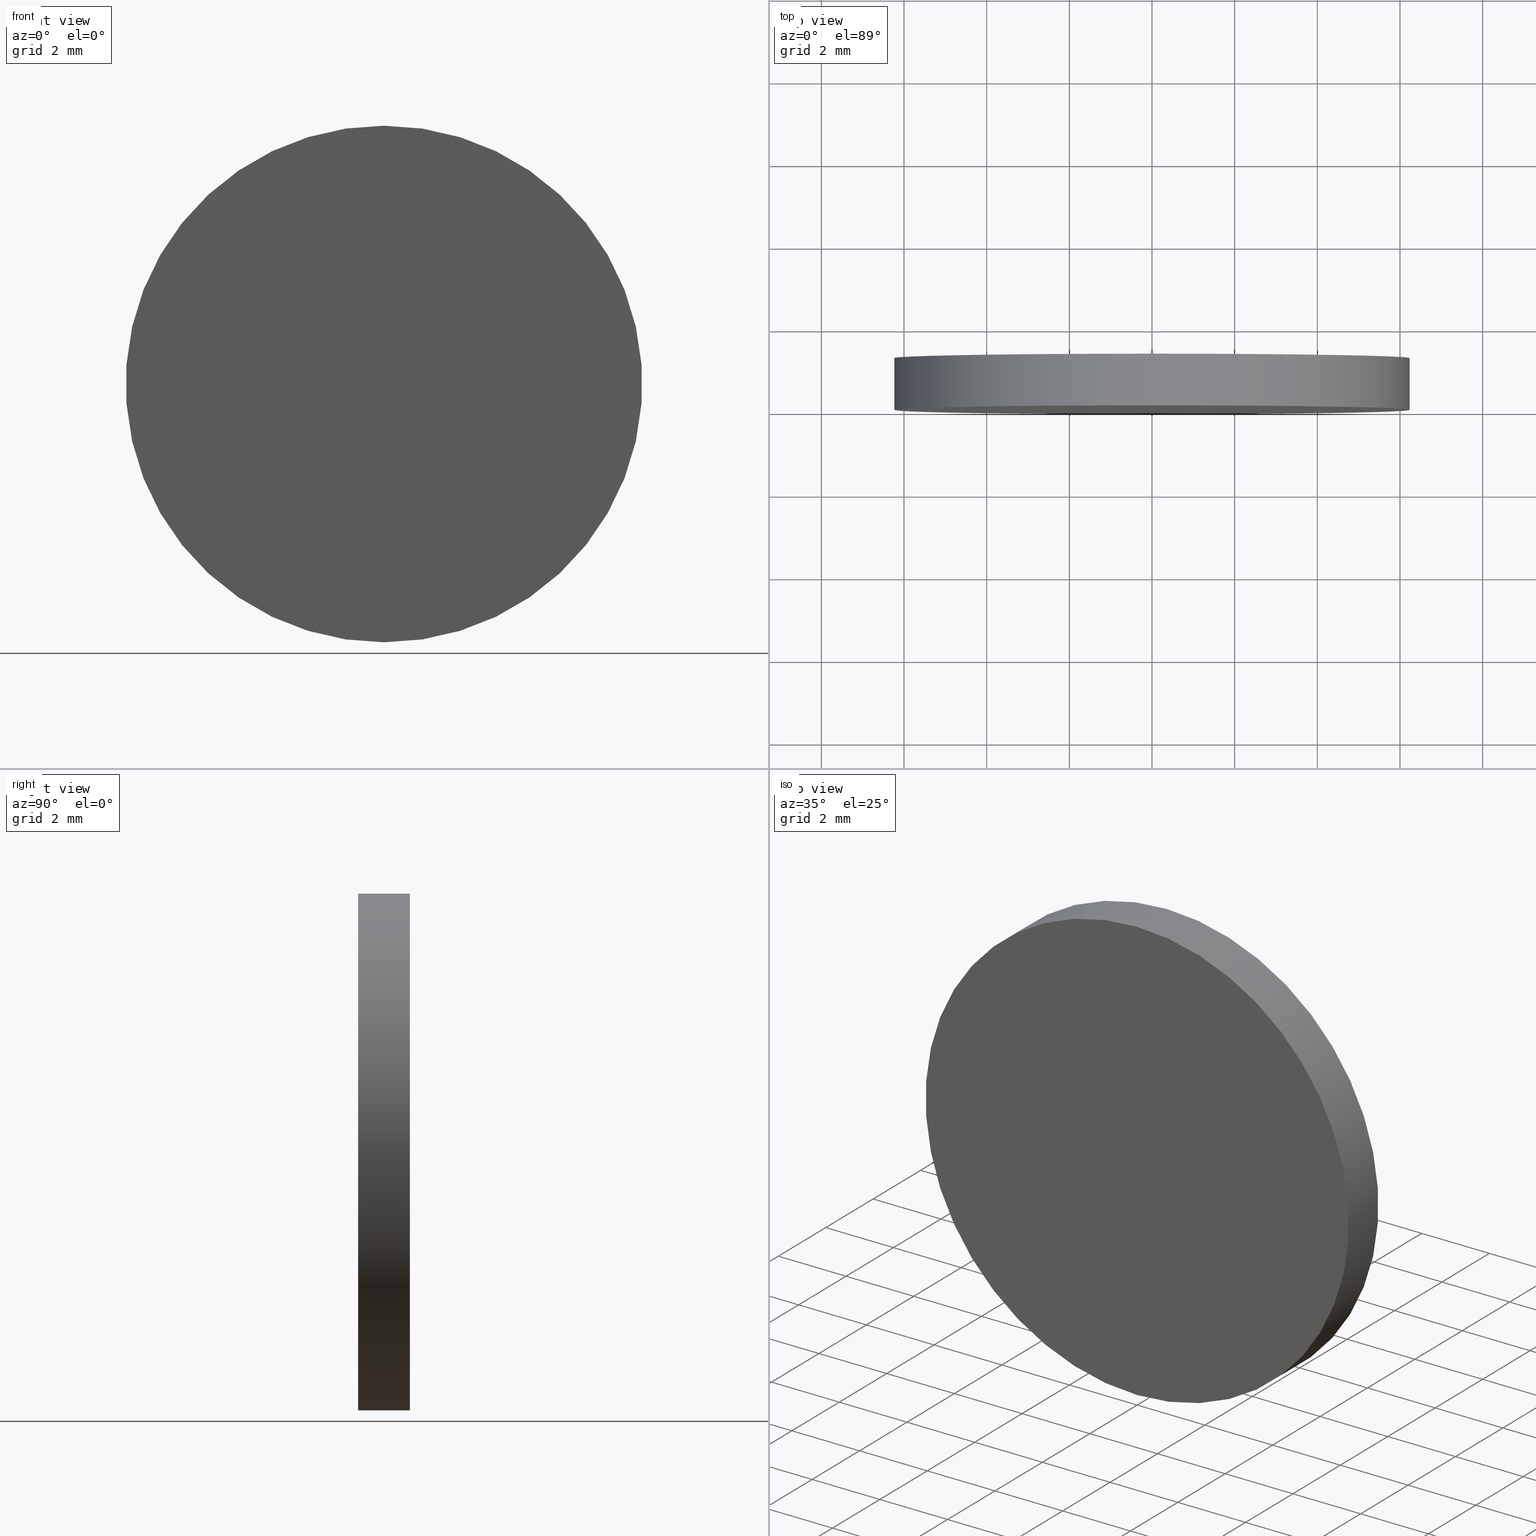
[diagram: canonical four-view strip — front | top / right | iso, engineering-drawing reading convention]
A machine part, canonical four-view strip (front | top / right | iso — engineering-drawing reading convention). The complete STEP part file that produces these views, byte-faithful:
ISO-10303-21;
HEADER;
FILE_DESCRIPTION (( 'STEP AP214' ),
    '1' );
FILE_NAME ('248579.STEP',
    '2019-08-02T08:50:03',
    ( 'user' ),
    ( '΢���й�' ),
    'SwSTEP 2.0',
    'SolidWorks 2016',
    '' );
FILE_SCHEMA (( 'AUTOMOTIVE_DESIGN' ));
ENDSEC;

DATA;
#1 = SURFACE_STYLE_FILL_AREA ( #90 ) ;
#2 = CARTESIAN_POINT ( 'NONE',  ( 0.0000000000000000000, 1.250000000000000000, -6.250000000000000000 ) ) ;
#3 = VERTEX_POINT ( 'NONE', #31 ) ;
#4 = CIRCLE ( 'NONE', #9, 6.250000000000000000 ) ;
#5 = APPLICATION_CONTEXT ( 'automotive_design' ) ;
#6 =( NAMED_UNIT ( * ) SI_UNIT ( $, .STERADIAN. ) SOLID_ANGLE_UNIT ( ) );
#7 = PRODUCT ( '248579', '248579', '', ( #16 ) ) ;
#8 = DIRECTION ( 'NONE',  ( 1.000000000000000000, 0.0000000000000000000, 0.0000000000000000000 ) ) ;
#9 = AXIS2_PLACEMENT_3D ( 'NONE', #48, #38, #114 ) ;
#10 = ORIENTED_EDGE ( 'NONE', *, *, #39, .F. ) ;
#11 = ADVANCED_FACE ( 'NONE', ( #40 ), #71, .T. ) ;
#12 = PRESENTATION_LAYER_ASSIGNMENT (  '', '', ( #52 ) ) ;
#13 = LINE ( 'NONE', #112, #109 ) ;
#14 =( LENGTH_UNIT ( ) NAMED_UNIT ( * ) SI_UNIT ( .MILLI., .METRE. ) );
#15 = EDGE_CURVE ( 'NONE', #82, #124, #107, .T. ) ;
#16 = PRODUCT_CONTEXT ( 'NONE', #5, 'mechanical' ) ;
#17 = SURFACE_STYLE_USAGE ( .BOTH. , #113 ) ;
#18 = ORIENTED_EDGE ( 'NONE', *, *, #24, .T. ) ;
#19 = COLOUR_RGB ( '',1.000000000000000000, 1.000000000000000000, 1.000000000000000000 ) ;
#20 = SURFACE_STYLE_USAGE ( .BOTH. , #80 ) ;
#21 = ADVANCED_FACE ( 'NONE', ( #25 ), #36, .T. ) ;
#22 = DIRECTION ( 'NONE',  ( 0.0000000000000000000, 1.000000000000000000, 0.0000000000000000000 ) ) ;
#23 = CARTESIAN_POINT ( 'NONE',  ( 0.0000000000000000000, 1.250000000000000000, 0.0000000000000000000 ) ) ;
#24 = EDGE_CURVE ( 'NONE', #33, #3, #4, .T. ) ;
#25 = FACE_OUTER_BOUND ( 'NONE', #108, .T. ) ;
#26 =( LENGTH_UNIT ( ) NAMED_UNIT ( * ) SI_UNIT ( .MILLI., .METRE. ) );
#27 = DIRECTION ( 'NONE',  ( 0.0000000000000000000, 0.0000000000000000000, 1.000000000000000000 ) ) ;
#28 =( NAMED_UNIT ( * ) SI_UNIT ( $, .STERADIAN. ) SOLID_ANGLE_UNIT ( ) );
#29 =( GEOMETRIC_REPRESENTATION_CONTEXT ( 3 ) GLOBAL_UNCERTAINTY_ASSIGNED_CONTEXT ( ( #63 ) ) GLOBAL_UNIT_ASSIGNED_CONTEXT ( ( #26, #53, #6 ) ) REPRESENTATION_CONTEXT ( 'NONE', 'WORKASPACE' ) );
#30 = AXIS2_PLACEMENT_3D ( 'NONE', #77, #75, #74 ) ;
#31 = CARTESIAN_POINT ( 'NONE',  ( 7.654042494670957600E-016, 1.250000000000000000, 6.250000000000000000 ) ) ;
#32 = UNCERTAINTY_MEASURE_WITH_UNIT (LENGTH_MEASURE( 1.000000000000000100E-005 ), #97, 'distance_accuracy_value', 'NONE');
#33 = VERTEX_POINT ( 'NONE', #2 ) ;
#34 = AXIS2_PLACEMENT_3D ( 'NONE', #58, #56, #8 ) ;
#35 = ORIENTED_EDGE ( 'NONE', *, *, #131, .F. ) ;
#36 = CYLINDRICAL_SURFACE ( 'NONE', #65, 6.250000000000000000 ) ;
#37 = AXIS2_PLACEMENT_3D ( 'NONE', #81, #50, #54 ) ;
#38 = DIRECTION ( 'NONE',  ( 0.0000000000000000000, 1.000000000000000000, 0.0000000000000000000 ) ) ;
#39 = EDGE_CURVE ( 'NONE', #3, #82, #13, .T. ) ;
#40 = FACE_OUTER_BOUND ( 'NONE', #103, .T. ) ;
#41 = ORIENTED_EDGE ( 'NONE', *, *, #136, .T. ) ;
#42 = UNCERTAINTY_MEASURE_WITH_UNIT (LENGTH_MEASURE( 1.000000000000000100E-005 ), #14, 'distance_accuracy_value', 'NONE');
#43 = ADVANCED_FACE ( 'NONE', ( #79 ), #122, .T. ) ;
#44 = AXIS2_PLACEMENT_3D ( 'NONE', #116, #87, #76 ) ;
#45 = PRODUCT_DEFINITION_CONTEXT ( 'detailed design', #130, 'design' ) ;
#46 = STYLED_ITEM ( 'NONE', ( #117 ), #105 ) ;
#47 = EDGE_LOOP ( 'NONE', ( #10, #96, #41, #72 ) ) ;
#48 = CARTESIAN_POINT ( 'NONE',  ( 0.0000000000000000000, 1.250000000000000000, 0.0000000000000000000 ) ) ;
#49 = PRODUCT_DEFINITION_FORMATION_WITH_SPECIFIED_SOURCE ( '�κ�', '', #7, .NOT_KNOWN. ) ;
#50 = DIRECTION ( 'NONE',  ( 0.0000000000000000000, 1.000000000000000000, 0.0000000000000000000 ) ) ;
#51 = PLANE ( 'NONE',  #37 ) ;
#52 = STYLED_ITEM ( 'NONE', ( #91 ), #92 ) ;
#53 =( NAMED_UNIT ( * ) PLANE_ANGLE_UNIT ( ) SI_UNIT ( $, .RADIAN. ) );
#54 = DIRECTION ( 'NONE',  ( 0.0000000000000000000, -0.0000000000000000000, 1.000000000000000000 ) ) ;
#55 = EDGE_LOOP ( 'NONE', ( #101, #137 ) ) ;
#56 = DIRECTION ( 'NONE',  ( 0.0000000000000000000, 0.0000000000000000000, 1.000000000000000000 ) ) ;
#57 = DIRECTION ( 'NONE',  ( -0.0000000000000000000, -1.000000000000000000, -0.0000000000000000000 ) ) ;
#58 = CARTESIAN_POINT ( 'NONE',  ( 0.0000000000000000000, 0.0000000000000000000, 0.0000000000000000000 ) ) ;
#59 = DIRECTION ( 'NONE',  ( -0.0000000000000000000, -1.000000000000000000, -0.0000000000000000000 ) ) ;
#60 = ORIENTED_EDGE ( 'NONE', *, *, #39, .T. ) ;
#61 = SURFACE_STYLE_FILL_AREA ( #128 ) ;
#62 = PRODUCT_RELATED_PRODUCT_CATEGORY ( 'part', '', ( #7 ) ) ;
#63 = UNCERTAINTY_MEASURE_WITH_UNIT (LENGTH_MEASURE( 1.000000000000000100E-005 ), #26, 'distance_accuracy_value', 'NONE');
#64 = AXIS2_PLACEMENT_3D ( 'NONE', #23, #22, #27 ) ;
#65 = AXIS2_PLACEMENT_3D ( 'NONE', #111, #57, #93 ) ;
#66 = CARTESIAN_POINT ( 'NONE',  ( 0.0000000000000000000, 0.0000000000000000000, -6.250000000000000000 ) ) ;
#67 = FILL_AREA_STYLE_COLOUR ( '', #138 ) ;
#68 = CIRCLE ( 'NONE', #30, 6.250000000000000000 ) ;
#69 =( NAMED_UNIT ( * ) SI_UNIT ( $, .STERADIAN. ) SOLID_ANGLE_UNIT ( ) );
#70 = ADVANCED_FACE ( 'NONE', ( #102 ), #51, .F. ) ;
#71 = PLANE ( 'NONE',  #44 ) ;
#72 = ORIENTED_EDGE ( 'NONE', *, *, #134, .T. ) ;
#73 =( GEOMETRIC_REPRESENTATION_CONTEXT ( 3 ) GLOBAL_UNCERTAINTY_ASSIGNED_CONTEXT ( ( #32 ) ) GLOBAL_UNIT_ASSIGNED_CONTEXT ( ( #97, #127, #69 ) ) REPRESENTATION_CONTEXT ( 'NONE', 'WORKASPACE' ) );
#74 = DIRECTION ( 'NONE',  ( 0.0000000000000000000, 0.0000000000000000000, 1.000000000000000000 ) ) ;
#75 = DIRECTION ( 'NONE',  ( 0.0000000000000000000, 1.000000000000000000, 0.0000000000000000000 ) ) ;
#76 = DIRECTION ( 'NONE',  ( 0.0000000000000000000, -0.0000000000000000000, 1.000000000000000000 ) ) ;
#77 = CARTESIAN_POINT ( 'NONE',  ( 0.0000000000000000000, 0.0000000000000000000, 0.0000000000000000000 ) ) ;
#78 = PRESENTATION_LAYER_ASSIGNMENT (  '', '', ( #46 ) ) ;
#79 = FACE_OUTER_BOUND ( 'NONE', #47, .T. ) ;
#80 = SURFACE_SIDE_STYLE ('',( #1 ) ) ;
#81 = CARTESIAN_POINT ( 'NONE',  ( 0.0000000000000000000, 0.0000000000000000000, 0.0000000000000000000 ) ) ;
#82 = VERTEX_POINT ( 'NONE', #85 ) ;
#83 = PRODUCT_DEFINITION ( 'δ֪', '', #49, #45 ) ;
#84 = ORIENTED_EDGE ( 'NONE', *, *, #15, .T. ) ;
#85 = CARTESIAN_POINT ( 'NONE',  ( 7.654042494670957600E-016, 0.0000000000000000000, 6.250000000000000000 ) ) ;
#86 = CARTESIAN_POINT ( 'NONE',  ( 0.0000000000000000000, 1.250000000000000000, 0.0000000000000000000 ) ) ;
#87 = DIRECTION ( 'NONE',  ( 0.0000000000000000000, 1.000000000000000000, 0.0000000000000000000 ) ) ;
#88 = MECHANICAL_DESIGN_GEOMETRIC_PRESENTATION_REPRESENTATION (  '', ( #52 ), #29 ) ;
#89 = ORIENTED_EDGE ( 'NONE', *, *, #136, .F. ) ;
#90 = FILL_AREA_STYLE ('',( #133 ) ) ;
#91 = PRESENTATION_STYLE_ASSIGNMENT (( #17 ) ) ;
#92 = ADVANCED_BREP_SHAPE_REPRESENTATION ( '248579', ( #105, #34 ), #73 ) ;
#93 = DIRECTION ( 'NONE',  ( 0.0000000000000000000, 0.0000000000000000000, -1.000000000000000000 ) ) ;
#94 = CLOSED_SHELL ( 'NONE', ( #21, #43, #11, #70 ) ) ;
#95 = CIRCLE ( 'NONE', #64, 6.250000000000000000 ) ;
#96 = ORIENTED_EDGE ( 'NONE', *, *, #24, .F. ) ;
#97 =( LENGTH_UNIT ( ) NAMED_UNIT ( * ) SI_UNIT ( .MILLI., .METRE. ) );
#98 =( NAMED_UNIT ( * ) PLANE_ANGLE_UNIT ( ) SI_UNIT ( $, .RADIAN. ) );
#99 = APPLICATION_PROTOCOL_DEFINITION ( 'draft international standard', 'automotive_design', 1998, #130 ) ;
#100 = VECTOR ( 'NONE', #132, 1000.000000000000000 ) ;
#101 = ORIENTED_EDGE ( 'NONE', *, *, #134, .F. ) ;
#102 = FACE_OUTER_BOUND ( 'NONE', #55, .T. ) ;
#103 = EDGE_LOOP ( 'NONE', ( #18, #140 ) ) ;
#104 = CARTESIAN_POINT ( 'NONE',  ( 0.0000000000000000000, 1.250000000000000000, -6.250000000000000000 ) ) ;
#105 = MANIFOLD_SOLID_BREP ( '͹̨-����1', #94 ) ;
#106 = AXIS2_PLACEMENT_3D ( 'NONE', #86, #121, #118 ) ;
#107 = CIRCLE ( 'NONE', #126, 6.250000000000000000 ) ;
#108 = EDGE_LOOP ( 'NONE', ( #35, #60, #84, #89 ) ) ;
#109 = VECTOR ( 'NONE', #59, 1000.000000000000000 ) ;
#110 = PRODUCT_DEFINITION_SHAPE ( 'NONE', 'NONE',  #83 ) ;
#111 = CARTESIAN_POINT ( 'NONE',  ( 0.0000000000000000000, 1.250000000000000000, 0.0000000000000000000 ) ) ;
#112 = CARTESIAN_POINT ( 'NONE',  ( 7.654042494670957600E-016, 1.250000000000000000, 6.250000000000000000 ) ) ;
#113 = SURFACE_SIDE_STYLE ('',( #61 ) ) ;
#114 = DIRECTION ( 'NONE',  ( 0.0000000000000000000, 0.0000000000000000000, 1.000000000000000000 ) ) ;
#115 = APPLICATION_PROTOCOL_DEFINITION ( 'draft international standard', 'automotive_design', 1998, #5 ) ;
#116 = CARTESIAN_POINT ( 'NONE',  ( 0.0000000000000000000, 1.250000000000000000, 0.0000000000000000000 ) ) ;
#117 = PRESENTATION_STYLE_ASSIGNMENT (( #20 ) ) ;
#118 = DIRECTION ( 'NONE',  ( 0.0000000000000000000, 0.0000000000000000000, -1.000000000000000000 ) ) ;
#119 = MECHANICAL_DESIGN_GEOMETRIC_PRESENTATION_REPRESENTATION (  '', ( #46 ), #123 ) ;
#120 = DIRECTION ( 'NONE',  ( 0.0000000000000000000, 1.000000000000000000, 0.0000000000000000000 ) ) ;
#121 = DIRECTION ( 'NONE',  ( -0.0000000000000000000, -1.000000000000000000, -0.0000000000000000000 ) ) ;
#122 = CYLINDRICAL_SURFACE ( 'NONE', #106, 6.250000000000000000 ) ;
#123 =( GEOMETRIC_REPRESENTATION_CONTEXT ( 3 ) GLOBAL_UNCERTAINTY_ASSIGNED_CONTEXT ( ( #42 ) ) GLOBAL_UNIT_ASSIGNED_CONTEXT ( ( #14, #98, #28 ) ) REPRESENTATION_CONTEXT ( 'NONE', 'WORKASPACE' ) );
#124 = VERTEX_POINT ( 'NONE', #66 ) ;
#125 = DIRECTION ( 'NONE',  ( 0.0000000000000000000, 0.0000000000000000000, 1.000000000000000000 ) ) ;
#126 = AXIS2_PLACEMENT_3D ( 'NONE', #139, #120, #125 ) ;
#127 =( NAMED_UNIT ( * ) PLANE_ANGLE_UNIT ( ) SI_UNIT ( $, .RADIAN. ) );
#128 = FILL_AREA_STYLE ('',( #67 ) ) ;
#129 = LINE ( 'NONE', #104, #100 ) ;
#130 = APPLICATION_CONTEXT ( 'automotive_design' ) ;
#131 = EDGE_CURVE ( 'NONE', #3, #33, #95, .T. ) ;
#132 = DIRECTION ( 'NONE',  ( -0.0000000000000000000, -1.000000000000000000, -0.0000000000000000000 ) ) ;
#133 = FILL_AREA_STYLE_COLOUR ( '', #19 ) ;
#134 = EDGE_CURVE ( 'NONE', #124, #82, #68, .T. ) ;
#135 = SHAPE_DEFINITION_REPRESENTATION ( #110, #92 ) ;
#136 = EDGE_CURVE ( 'NONE', #33, #124, #129, .T. ) ;
#137 = ORIENTED_EDGE ( 'NONE', *, *, #15, .F. ) ;
#138 = COLOUR_RGB ( '',1.000000000000000000, 1.000000000000000000, 1.000000000000000000 ) ;
#139 = CARTESIAN_POINT ( 'NONE',  ( 0.0000000000000000000, 0.0000000000000000000, 0.0000000000000000000 ) ) ;
#140 = ORIENTED_EDGE ( 'NONE', *, *, #131, .T. ) ;
ENDSEC;
END-ISO-10303-21;
